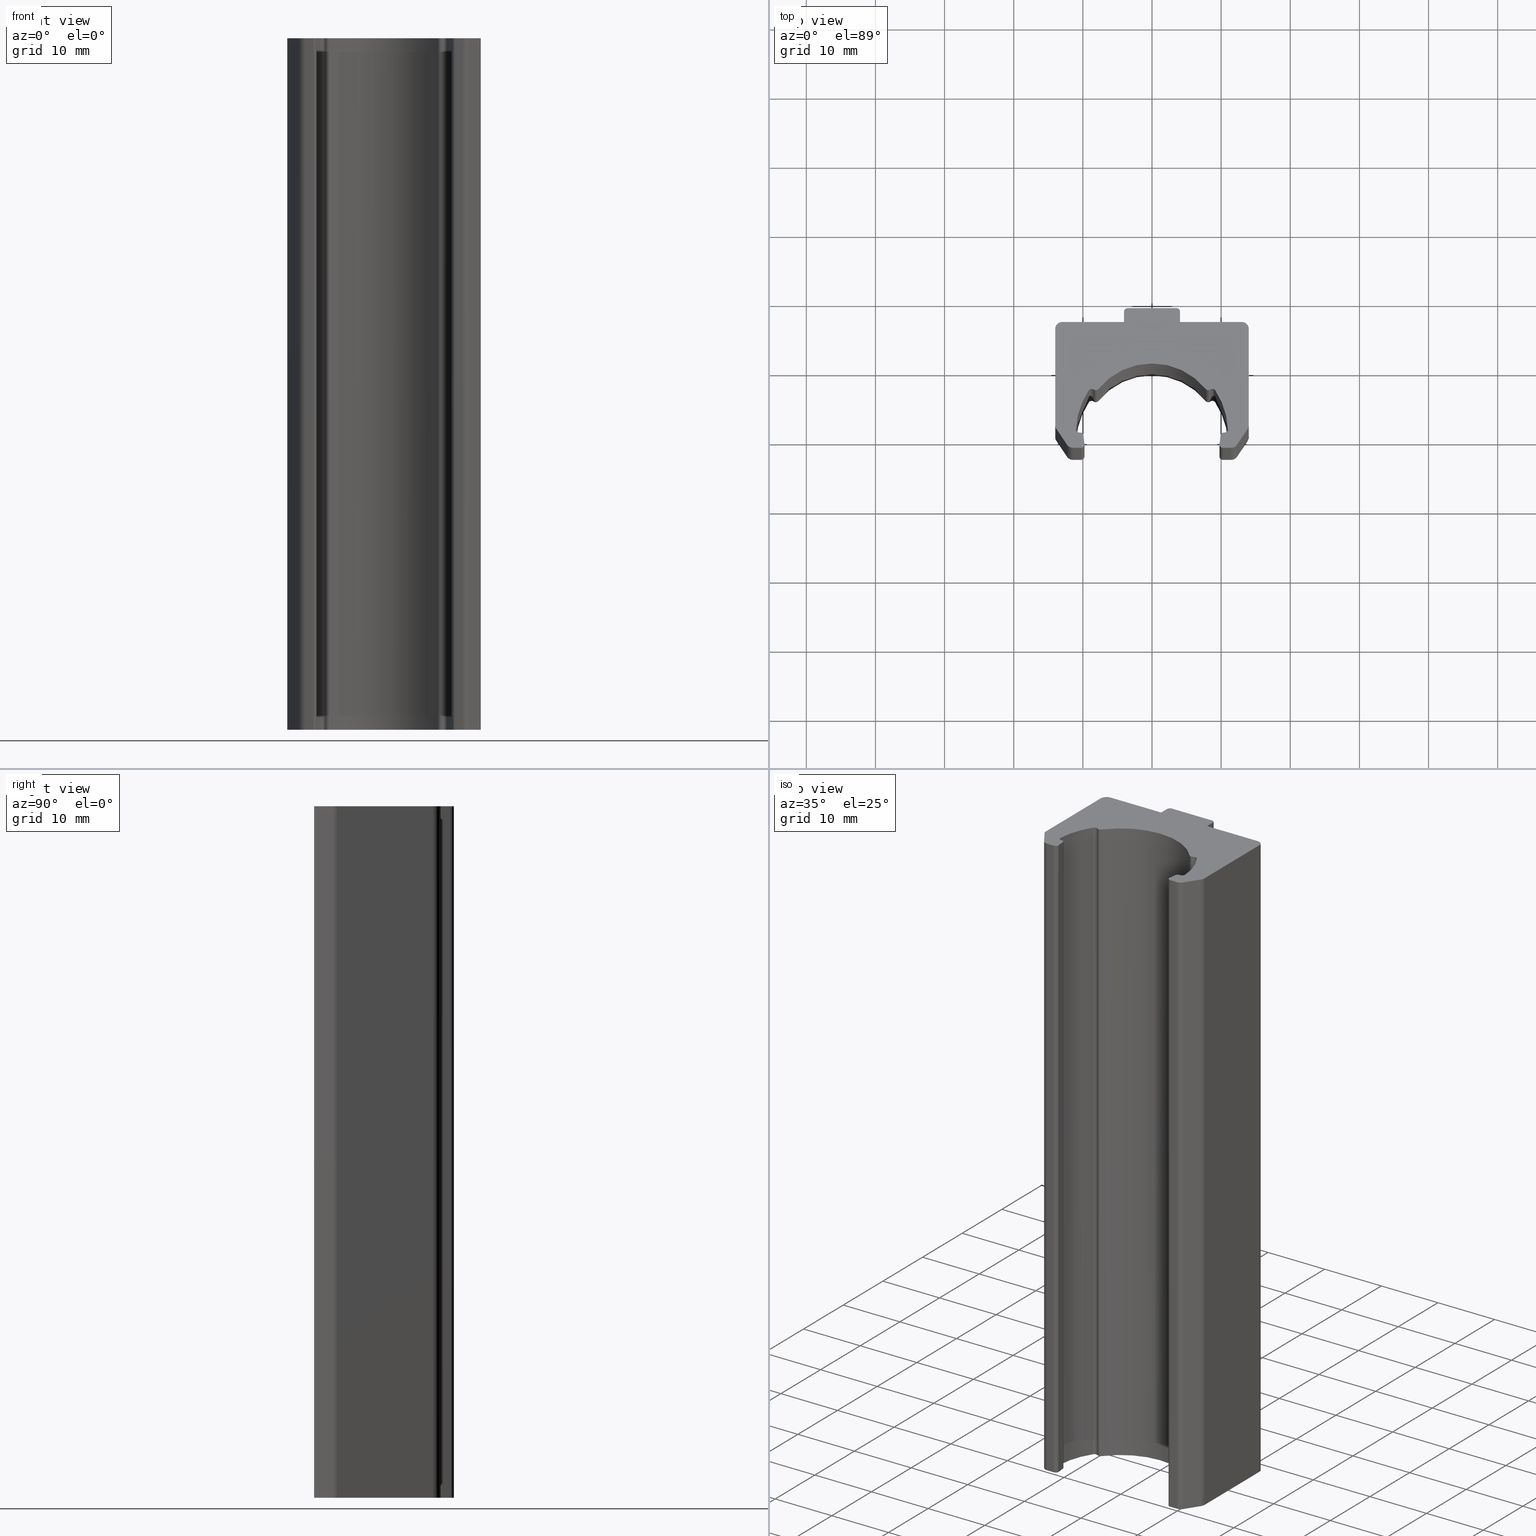
[diagram: canonical four-view strip — front | top / right | iso, engineering-drawing reading convention]
A machine part, canonical four-view strip (front | top / right | iso — engineering-drawing reading convention). The complete STEP part file that produces these views, byte-faithful:
ISO-10303-21;
HEADER;
/* Generated by software containing ST-Developer
 * from STEP Tools, Inc. (www.steptools.com) 
 */

FILE_DESCRIPTION(
/* description */ ('Profilo alluminio 01.'),
/* implementation_level */ '2;1');

FILE_NAME(
/* name */ 
'Q:\\Catalogo\\1_Profili Dierre\\Per Download Web e catalogo cartaceo\\
Profili Monorail\\BPRGD0000021.stp',
/* time_stamp */ '2018-02-27T11:33:29+01:00',
/* author */ ('fzagni'),
/* organization */ (''),
/* preprocessor_version */ 'ST-DEVELOPER v16.1',
/* originating_system */ 'Autodesk Inventor 2016',
/* authorisation */ '');

FILE_SCHEMA (('AUTOMOTIVE_DESIGN { 1 0 10303 214 3 1 1 }'));
ENDSEC;

DATA;
#10=MECHANICAL_DESIGN_GEOMETRIC_PRESENTATION_REPRESENTATION('',(#13),#1277);
#11=SHAPE_REPRESENTATION_RELATIONSHIP('SRR','None',#1286,#12);
#12=ADVANCED_BREP_SHAPE_REPRESENTATION('',(#14),#1276);
#13=STYLED_ITEM('',(#1295),#14);
#14=MANIFOLD_SOLID_BREP('Solido1',#729);
#15=PLANE('',#752);
#16=PLANE('',#756);
#17=PLANE('',#760);
#18=PLANE('',#764);
#19=PLANE('',#768);
#20=PLANE('',#772);
#21=PLANE('',#776);
#22=PLANE('',#780);
#23=PLANE('',#784);
#24=PLANE('',#788);
#25=PLANE('',#792);
#26=PLANE('',#817);
#27=PLANE('',#818);
#28=FACE_OUTER_BOUND('',#66,.T.);
#29=FACE_OUTER_BOUND('',#67,.T.);
#30=FACE_OUTER_BOUND('',#68,.T.);
#31=FACE_OUTER_BOUND('',#69,.T.);
#32=FACE_OUTER_BOUND('',#70,.T.);
#33=FACE_OUTER_BOUND('',#71,.T.);
#34=FACE_OUTER_BOUND('',#72,.T.);
#35=FACE_OUTER_BOUND('',#73,.T.);
#36=FACE_OUTER_BOUND('',#74,.T.);
#37=FACE_OUTER_BOUND('',#75,.T.);
#38=FACE_OUTER_BOUND('',#76,.T.);
#39=FACE_OUTER_BOUND('',#77,.T.);
#40=FACE_OUTER_BOUND('',#78,.T.);
#41=FACE_OUTER_BOUND('',#79,.T.);
#42=FACE_OUTER_BOUND('',#80,.T.);
#43=FACE_OUTER_BOUND('',#81,.T.);
#44=FACE_OUTER_BOUND('',#82,.T.);
#45=FACE_OUTER_BOUND('',#83,.T.);
#46=FACE_OUTER_BOUND('',#84,.T.);
#47=FACE_OUTER_BOUND('',#85,.T.);
#48=FACE_OUTER_BOUND('',#86,.T.);
#49=FACE_OUTER_BOUND('',#87,.T.);
#50=FACE_OUTER_BOUND('',#88,.T.);
#51=FACE_OUTER_BOUND('',#89,.T.);
#52=FACE_OUTER_BOUND('',#90,.T.);
#53=FACE_OUTER_BOUND('',#91,.T.);
#54=FACE_OUTER_BOUND('',#92,.T.);
#55=FACE_OUTER_BOUND('',#93,.T.);
#56=FACE_OUTER_BOUND('',#94,.T.);
#57=FACE_OUTER_BOUND('',#95,.T.);
#58=FACE_OUTER_BOUND('',#96,.T.);
#59=FACE_OUTER_BOUND('',#97,.T.);
#60=FACE_OUTER_BOUND('',#98,.T.);
#61=FACE_OUTER_BOUND('',#99,.T.);
#62=FACE_OUTER_BOUND('',#100,.T.);
#63=FACE_OUTER_BOUND('',#101,.T.);
#64=FACE_OUTER_BOUND('',#102,.T.);
#65=FACE_OUTER_BOUND('',#103,.T.);
#66=EDGE_LOOP('',(#450,#451,#452,#453));
#67=EDGE_LOOP('',(#454,#455,#456,#457));
#68=EDGE_LOOP('',(#458,#459,#460,#461));
#69=EDGE_LOOP('',(#462,#463,#464,#465));
#70=EDGE_LOOP('',(#466,#467,#468,#469));
#71=EDGE_LOOP('',(#470,#471,#472,#473));
#72=EDGE_LOOP('',(#474,#475,#476,#477));
#73=EDGE_LOOP('',(#478,#479,#480,#481));
#74=EDGE_LOOP('',(#482,#483,#484,#485));
#75=EDGE_LOOP('',(#486,#487,#488,#489));
#76=EDGE_LOOP('',(#490,#491,#492,#493));
#77=EDGE_LOOP('',(#494,#495,#496,#497));
#78=EDGE_LOOP('',(#498,#499,#500,#501));
#79=EDGE_LOOP('',(#502,#503,#504,#505));
#80=EDGE_LOOP('',(#506,#507,#508,#509));
#81=EDGE_LOOP('',(#510,#511,#512,#513));
#82=EDGE_LOOP('',(#514,#515,#516,#517));
#83=EDGE_LOOP('',(#518,#519,#520,#521));
#84=EDGE_LOOP('',(#522,#523,#524,#525));
#85=EDGE_LOOP('',(#526,#527,#528,#529));
#86=EDGE_LOOP('',(#530,#531,#532,#533));
#87=EDGE_LOOP('',(#534,#535,#536,#537));
#88=EDGE_LOOP('',(#538,#539,#540,#541));
#89=EDGE_LOOP('',(#542,#543,#544,#545));
#90=EDGE_LOOP('',(#546,#547,#548,#549));
#91=EDGE_LOOP('',(#550,#551,#552,#553));
#92=EDGE_LOOP('',(#554,#555,#556,#557));
#93=EDGE_LOOP('',(#558,#559,#560,#561));
#94=EDGE_LOOP('',(#562,#563,#564,#565));
#95=EDGE_LOOP('',(#566,#567,#568,#569));
#96=EDGE_LOOP('',(#570,#571,#572,#573));
#97=EDGE_LOOP('',(#574,#575,#576,#577));
#98=EDGE_LOOP('',(#578,#579,#580,#581));
#99=EDGE_LOOP('',(#582,#583,#584,#585));
#100=EDGE_LOOP('',(#586,#587,#588,#589));
#101=EDGE_LOOP('',(#590,#591,#592,#593));
#102=EDGE_LOOP('',(#594,#595,#596,#597,#598,#599,#600,#601,#602,#603,#604,
#605,#606,#607,#608,#609,#610,#611,#612,#613,#614,#615,#616,#617,#618,#619,
#620,#621,#622,#623,#624,#625,#626,#627,#628,#629));
#103=EDGE_LOOP('',(#630,#631,#632,#633,#634,#635,#636,#637,#638,#639,#640,
#641,#642,#643,#644,#645,#646,#647,#648,#649,#650,#651,#652,#653,#654,#655,
#656,#657,#658,#659,#660,#661,#662,#663,#664,#665));
#104=LINE('',#1061,#162);
#105=LINE('',#1064,#163);
#106=LINE('',#1070,#164);
#107=LINE('',#1076,#165);
#108=LINE('',#1082,#166);
#109=LINE('',#1088,#167);
#110=LINE('',#1094,#168);
#111=LINE('',#1100,#169);
#112=LINE('',#1103,#170);
#113=LINE('',#1105,#171);
#114=LINE('',#1106,#172);
#115=LINE('',#1112,#173);
#116=LINE('',#1115,#174);
#117=LINE('',#1117,#175);
#118=LINE('',#1118,#176);
#119=LINE('',#1124,#177);
#120=LINE('',#1127,#178);
#121=LINE('',#1129,#179);
#122=LINE('',#1130,#180);
#123=LINE('',#1136,#181);
#124=LINE('',#1139,#182);
#125=LINE('',#1141,#183);
#126=LINE('',#1142,#184);
#127=LINE('',#1148,#185);
#128=LINE('',#1151,#186);
#129=LINE('',#1153,#187);
#130=LINE('',#1154,#188);
#131=LINE('',#1160,#189);
#132=LINE('',#1163,#190);
#133=LINE('',#1165,#191);
#134=LINE('',#1166,#192);
#135=LINE('',#1172,#193);
#136=LINE('',#1175,#194);
#137=LINE('',#1177,#195);
#138=LINE('',#1178,#196);
#139=LINE('',#1184,#197);
#140=LINE('',#1187,#198);
#141=LINE('',#1189,#199);
#142=LINE('',#1190,#200);
#143=LINE('',#1196,#201);
#144=LINE('',#1199,#202);
#145=LINE('',#1201,#203);
#146=LINE('',#1202,#204);
#147=LINE('',#1208,#205);
#148=LINE('',#1211,#206);
#149=LINE('',#1213,#207);
#150=LINE('',#1214,#208);
#151=LINE('',#1220,#209);
#152=LINE('',#1223,#210);
#153=LINE('',#1225,#211);
#154=LINE('',#1226,#212);
#155=LINE('',#1232,#213);
#156=LINE('',#1238,#214);
#157=LINE('',#1244,#215);
#158=LINE('',#1250,#216);
#159=LINE('',#1256,#217);
#160=LINE('',#1262,#218);
#161=LINE('',#1268,#219);
#162=VECTOR('',#825,100.);
#163=VECTOR('',#828,100.);
#164=VECTOR('',#835,100.);
#165=VECTOR('',#842,100.);
#166=VECTOR('',#849,100.);
#167=VECTOR('',#856,100.);
#168=VECTOR('',#863,100.);
#169=VECTOR('',#870,100.);
#170=VECTOR('',#873,1.20469982082017);
#171=VECTOR('',#874,1.20469982082017);
#172=VECTOR('',#875,100.);
#173=VECTOR('',#882,100.);
#174=VECTOR('',#885,2.76759187923272);
#175=VECTOR('',#886,2.76759187923272);
#176=VECTOR('',#887,100.);
#177=VECTOR('',#894,100.);
#178=VECTOR('',#897,13.8972243622125);
#179=VECTOR('',#898,13.8972243622125);
#180=VECTOR('',#899,100.);
#181=VECTOR('',#906,100.);
#182=VECTOR('',#909,8.84999999996477);
#183=VECTOR('',#910,8.84999999996477);
#184=VECTOR('',#911,100.);
#185=VECTOR('',#918,100.);
#186=VECTOR('',#921,1.39999999999418);
#187=VECTOR('',#922,1.39999999999418);
#188=VECTOR('',#923,100.);
#189=VECTOR('',#930,100.);
#190=VECTOR('',#933,7.09999999997126);
#191=VECTOR('',#934,7.09999999997126);
#192=VECTOR('',#935,100.);
#193=VECTOR('',#942,100.);
#194=VECTOR('',#945,1.39999999999418);
#195=VECTOR('',#946,1.39999999999418);
#196=VECTOR('',#947,100.);
#197=VECTOR('',#954,100.);
#198=VECTOR('',#957,8.84999847502764);
#199=VECTOR('',#958,8.84999847502764);
#200=VECTOR('',#959,100.);
#201=VECTOR('',#966,100.);
#202=VECTOR('',#969,13.8972243622123);
#203=VECTOR('',#970,13.8972243622123);
#204=VECTOR('',#971,100.);
#205=VECTOR('',#978,100.);
#206=VECTOR('',#981,2.76759187923311);
#207=VECTOR('',#982,2.76759187923311);
#208=VECTOR('',#983,100.);
#209=VECTOR('',#990,100.);
#210=VECTOR('',#993,1.2047000421435);
#211=VECTOR('',#994,1.2047000421435);
#212=VECTOR('',#995,100.);
#213=VECTOR('',#1002,100.);
#214=VECTOR('',#1009,100.);
#215=VECTOR('',#1016,100.);
#216=VECTOR('',#1023,100.);
#217=VECTOR('',#1030,100.);
#218=VECTOR('',#1037,100.);
#219=VECTOR('',#1044,100.);
#220=CIRCLE('',#732,0.499999999998);
#221=CIRCLE('',#733,0.499999999998);
#222=CIRCLE('',#735,0.499999999998);
#223=CIRCLE('',#736,0.499999999998);
#224=CIRCLE('',#738,10.9999999999542);
#225=CIRCLE('',#739,10.9999999999542);
#226=CIRCLE('',#741,0.499999999998);
#227=CIRCLE('',#742,0.499999999998);
#228=CIRCLE('',#744,0.499999999998);
#229=CIRCLE('',#745,0.499999999998);
#230=CIRCLE('',#747,9.89999856988403);
#231=CIRCLE('',#748,9.89999856988403);
#232=CIRCLE('',#750,0.499999999998);
#233=CIRCLE('',#751,0.499999999998);
#234=CIRCLE('',#754,0.999999999996);
#235=CIRCLE('',#755,0.999999999996);
#236=CIRCLE('',#758,0.999999999996);
#237=CIRCLE('',#759,0.999999999996);
#238=CIRCLE('',#762,0.999999999996);
#239=CIRCLE('',#763,0.999999999996);
#240=CIRCLE('',#766,0.0999999999996);
#241=CIRCLE('',#767,0.0999999999996);
#242=CIRCLE('',#770,0.499999999998);
#243=CIRCLE('',#771,0.499999999998);
#244=CIRCLE('',#774,0.499999999998);
#245=CIRCLE('',#775,0.499999999998);
#246=CIRCLE('',#778,0.0999999999996);
#247=CIRCLE('',#779,0.0999999999996);
#248=CIRCLE('',#782,0.999999999996);
#249=CIRCLE('',#783,0.999999999996);
#250=CIRCLE('',#786,0.999999999996);
#251=CIRCLE('',#787,0.999999999996);
#252=CIRCLE('',#790,0.999999999996);
#253=CIRCLE('',#791,0.999999999996);
#254=CIRCLE('',#794,0.499999999998);
#255=CIRCLE('',#795,0.499999999998);
#256=CIRCLE('',#797,9.89999856988403);
#257=CIRCLE('',#798,9.89999856988403);
#258=CIRCLE('',#800,0.499999999998);
#259=CIRCLE('',#801,0.499999999998);
#260=CIRCLE('',#803,0.499999999998);
#261=CIRCLE('',#804,0.499999999998);
#262=CIRCLE('',#806,10.9999999999547);
#263=CIRCLE('',#807,10.9999999999547);
#264=CIRCLE('',#809,0.499999999998);
#265=CIRCLE('',#810,0.499999999998);
#266=CIRCLE('',#812,0.499999999998);
#267=CIRCLE('',#813,0.499999999998);
#268=CIRCLE('',#815,9.99999999995869);
#269=CIRCLE('',#816,9.99999999995869);
#270=VERTEX_POINT('',#1057);
#271=VERTEX_POINT('',#1058);
#272=VERTEX_POINT('',#1060);
#273=VERTEX_POINT('',#1062);
#274=VERTEX_POINT('',#1066);
#275=VERTEX_POINT('',#1068);
#276=VERTEX_POINT('',#1072);
#277=VERTEX_POINT('',#1074);
#278=VERTEX_POINT('',#1078);
#279=VERTEX_POINT('',#1080);
#280=VERTEX_POINT('',#1084);
#281=VERTEX_POINT('',#1086);
#282=VERTEX_POINT('',#1090);
#283=VERTEX_POINT('',#1092);
#284=VERTEX_POINT('',#1096);
#285=VERTEX_POINT('',#1098);
#286=VERTEX_POINT('',#1102);
#287=VERTEX_POINT('',#1104);
#288=VERTEX_POINT('',#1108);
#289=VERTEX_POINT('',#1110);
#290=VERTEX_POINT('',#1114);
#291=VERTEX_POINT('',#1116);
#292=VERTEX_POINT('',#1120);
#293=VERTEX_POINT('',#1122);
#294=VERTEX_POINT('',#1126);
#295=VERTEX_POINT('',#1128);
#296=VERTEX_POINT('',#1132);
#297=VERTEX_POINT('',#1134);
#298=VERTEX_POINT('',#1138);
#299=VERTEX_POINT('',#1140);
#300=VERTEX_POINT('',#1144);
#301=VERTEX_POINT('',#1146);
#302=VERTEX_POINT('',#1150);
#303=VERTEX_POINT('',#1152);
#304=VERTEX_POINT('',#1156);
#305=VERTEX_POINT('',#1158);
#306=VERTEX_POINT('',#1162);
#307=VERTEX_POINT('',#1164);
#308=VERTEX_POINT('',#1168);
#309=VERTEX_POINT('',#1170);
#310=VERTEX_POINT('',#1174);
#311=VERTEX_POINT('',#1176);
#312=VERTEX_POINT('',#1180);
#313=VERTEX_POINT('',#1182);
#314=VERTEX_POINT('',#1186);
#315=VERTEX_POINT('',#1188);
#316=VERTEX_POINT('',#1192);
#317=VERTEX_POINT('',#1194);
#318=VERTEX_POINT('',#1198);
#319=VERTEX_POINT('',#1200);
#320=VERTEX_POINT('',#1204);
#321=VERTEX_POINT('',#1206);
#322=VERTEX_POINT('',#1210);
#323=VERTEX_POINT('',#1212);
#324=VERTEX_POINT('',#1216);
#325=VERTEX_POINT('',#1218);
#326=VERTEX_POINT('',#1222);
#327=VERTEX_POINT('',#1224);
#328=VERTEX_POINT('',#1228);
#329=VERTEX_POINT('',#1230);
#330=VERTEX_POINT('',#1234);
#331=VERTEX_POINT('',#1236);
#332=VERTEX_POINT('',#1240);
#333=VERTEX_POINT('',#1242);
#334=VERTEX_POINT('',#1246);
#335=VERTEX_POINT('',#1248);
#336=VERTEX_POINT('',#1252);
#337=VERTEX_POINT('',#1254);
#338=VERTEX_POINT('',#1258);
#339=VERTEX_POINT('',#1260);
#340=VERTEX_POINT('',#1264);
#341=VERTEX_POINT('',#1266);
#342=EDGE_CURVE('',#270,#271,#220,.T.);
#343=EDGE_CURVE('',#270,#272,#104,.T.);
#344=EDGE_CURVE('',#273,#272,#221,.T.);
#345=EDGE_CURVE('',#271,#273,#105,.T.);
#346=EDGE_CURVE('',#271,#274,#222,.T.);
#347=EDGE_CURVE('',#275,#273,#223,.T.);
#348=EDGE_CURVE('',#274,#275,#106,.T.);
#349=EDGE_CURVE('',#274,#276,#224,.T.);
#350=EDGE_CURVE('',#277,#275,#225,.T.);
#351=EDGE_CURVE('',#276,#277,#107,.T.);
#352=EDGE_CURVE('',#276,#278,#226,.T.);
#353=EDGE_CURVE('',#279,#277,#227,.T.);
#354=EDGE_CURVE('',#278,#279,#108,.T.);
#355=EDGE_CURVE('',#278,#280,#228,.T.);
#356=EDGE_CURVE('',#281,#279,#229,.T.);
#357=EDGE_CURVE('',#280,#281,#109,.T.);
#358=EDGE_CURVE('',#280,#282,#230,.T.);
#359=EDGE_CURVE('',#283,#281,#231,.T.);
#360=EDGE_CURVE('',#282,#283,#110,.T.);
#361=EDGE_CURVE('',#282,#284,#232,.T.);
#362=EDGE_CURVE('',#285,#283,#233,.T.);
#363=EDGE_CURVE('',#284,#285,#111,.T.);
#364=EDGE_CURVE('',#284,#286,#112,.T.);
#365=EDGE_CURVE('',#287,#285,#113,.T.);
#366=EDGE_CURVE('',#286,#287,#114,.T.);
#367=EDGE_CURVE('',#286,#288,#234,.T.);
#368=EDGE_CURVE('',#289,#287,#235,.T.);
#369=EDGE_CURVE('',#288,#289,#115,.T.);
#370=EDGE_CURVE('',#288,#290,#116,.T.);
#371=EDGE_CURVE('',#291,#289,#117,.T.);
#372=EDGE_CURVE('',#290,#291,#118,.T.);
#373=EDGE_CURVE('',#290,#292,#236,.T.);
#374=EDGE_CURVE('',#293,#291,#237,.T.);
#375=EDGE_CURVE('',#292,#293,#119,.T.);
#376=EDGE_CURVE('',#292,#294,#120,.T.);
#377=EDGE_CURVE('',#295,#293,#121,.T.);
#378=EDGE_CURVE('',#294,#295,#122,.T.);
#379=EDGE_CURVE('',#294,#296,#238,.T.);
#380=EDGE_CURVE('',#297,#295,#239,.T.);
#381=EDGE_CURVE('',#296,#297,#123,.T.);
#382=EDGE_CURVE('',#296,#298,#124,.T.);
#383=EDGE_CURVE('',#299,#297,#125,.T.);
#384=EDGE_CURVE('',#298,#299,#126,.T.);
#385=EDGE_CURVE('',#298,#300,#240,.T.);
#386=EDGE_CURVE('',#301,#299,#241,.T.);
#387=EDGE_CURVE('',#300,#301,#127,.T.);
#388=EDGE_CURVE('',#300,#302,#128,.T.);
#389=EDGE_CURVE('',#303,#301,#129,.T.);
#390=EDGE_CURVE('',#302,#303,#130,.T.);
#391=EDGE_CURVE('',#302,#304,#242,.T.);
#392=EDGE_CURVE('',#305,#303,#243,.T.);
#393=EDGE_CURVE('',#304,#305,#131,.T.);
#394=EDGE_CURVE('',#304,#306,#132,.T.);
#395=EDGE_CURVE('',#307,#305,#133,.T.);
#396=EDGE_CURVE('',#306,#307,#134,.T.);
#397=EDGE_CURVE('',#306,#308,#244,.T.);
#398=EDGE_CURVE('',#309,#307,#245,.T.);
#399=EDGE_CURVE('',#308,#309,#135,.T.);
#400=EDGE_CURVE('',#308,#310,#136,.T.);
#401=EDGE_CURVE('',#311,#309,#137,.T.);
#402=EDGE_CURVE('',#310,#311,#138,.T.);
#403=EDGE_CURVE('',#310,#312,#246,.T.);
#404=EDGE_CURVE('',#313,#311,#247,.T.);
#405=EDGE_CURVE('',#312,#313,#139,.T.);
#406=EDGE_CURVE('',#312,#314,#140,.T.);
#407=EDGE_CURVE('',#315,#313,#141,.T.);
#408=EDGE_CURVE('',#314,#315,#142,.T.);
#409=EDGE_CURVE('',#314,#316,#248,.T.);
#410=EDGE_CURVE('',#317,#315,#249,.T.);
#411=EDGE_CURVE('',#316,#317,#143,.T.);
#412=EDGE_CURVE('',#316,#318,#144,.T.);
#413=EDGE_CURVE('',#319,#317,#145,.T.);
#414=EDGE_CURVE('',#318,#319,#146,.T.);
#415=EDGE_CURVE('',#318,#320,#250,.T.);
#416=EDGE_CURVE('',#321,#319,#251,.T.);
#417=EDGE_CURVE('',#320,#321,#147,.T.);
#418=EDGE_CURVE('',#320,#322,#148,.T.);
#419=EDGE_CURVE('',#323,#321,#149,.T.);
#420=EDGE_CURVE('',#322,#323,#150,.T.);
#421=EDGE_CURVE('',#322,#324,#252,.T.);
#422=EDGE_CURVE('',#325,#323,#253,.T.);
#423=EDGE_CURVE('',#324,#325,#151,.T.);
#424=EDGE_CURVE('',#324,#326,#152,.T.);
#425=EDGE_CURVE('',#327,#325,#153,.T.);
#426=EDGE_CURVE('',#326,#327,#154,.T.);
#427=EDGE_CURVE('',#326,#328,#254,.T.);
#428=EDGE_CURVE('',#329,#327,#255,.T.);
#429=EDGE_CURVE('',#328,#329,#155,.T.);
#430=EDGE_CURVE('',#328,#330,#256,.T.);
#431=EDGE_CURVE('',#331,#329,#257,.T.);
#432=EDGE_CURVE('',#330,#331,#156,.T.);
#433=EDGE_CURVE('',#330,#332,#258,.T.);
#434=EDGE_CURVE('',#333,#331,#259,.T.);
#435=EDGE_CURVE('',#332,#333,#157,.T.);
#436=EDGE_CURVE('',#332,#334,#260,.T.);
#437=EDGE_CURVE('',#335,#333,#261,.T.);
#438=EDGE_CURVE('',#334,#335,#158,.T.);
#439=EDGE_CURVE('',#334,#336,#262,.T.);
#440=EDGE_CURVE('',#337,#335,#263,.T.);
#441=EDGE_CURVE('',#336,#337,#159,.T.);
#442=EDGE_CURVE('',#336,#338,#264,.T.);
#443=EDGE_CURVE('',#339,#337,#265,.T.);
#444=EDGE_CURVE('',#338,#339,#160,.T.);
#445=EDGE_CURVE('',#338,#340,#266,.T.);
#446=EDGE_CURVE('',#341,#339,#267,.T.);
#447=EDGE_CURVE('',#340,#341,#161,.T.);
#448=EDGE_CURVE('',#340,#270,#268,.T.);
#449=EDGE_CURVE('',#272,#341,#269,.T.);
#450=ORIENTED_EDGE('',*,*,#342,.F.);
#451=ORIENTED_EDGE('',*,*,#343,.T.);
#452=ORIENTED_EDGE('',*,*,#344,.F.);
#453=ORIENTED_EDGE('',*,*,#345,.F.);
#454=ORIENTED_EDGE('',*,*,#346,.F.);
#455=ORIENTED_EDGE('',*,*,#345,.T.);
#456=ORIENTED_EDGE('',*,*,#347,.F.);
#457=ORIENTED_EDGE('',*,*,#348,.F.);
#458=ORIENTED_EDGE('',*,*,#349,.F.);
#459=ORIENTED_EDGE('',*,*,#348,.T.);
#460=ORIENTED_EDGE('',*,*,#350,.F.);
#461=ORIENTED_EDGE('',*,*,#351,.F.);
#462=ORIENTED_EDGE('',*,*,#352,.F.);
#463=ORIENTED_EDGE('',*,*,#351,.T.);
#464=ORIENTED_EDGE('',*,*,#353,.F.);
#465=ORIENTED_EDGE('',*,*,#354,.F.);
#466=ORIENTED_EDGE('',*,*,#355,.F.);
#467=ORIENTED_EDGE('',*,*,#354,.T.);
#468=ORIENTED_EDGE('',*,*,#356,.F.);
#469=ORIENTED_EDGE('',*,*,#357,.F.);
#470=ORIENTED_EDGE('',*,*,#358,.F.);
#471=ORIENTED_EDGE('',*,*,#357,.T.);
#472=ORIENTED_EDGE('',*,*,#359,.F.);
#473=ORIENTED_EDGE('',*,*,#360,.F.);
#474=ORIENTED_EDGE('',*,*,#361,.F.);
#475=ORIENTED_EDGE('',*,*,#360,.T.);
#476=ORIENTED_EDGE('',*,*,#362,.F.);
#477=ORIENTED_EDGE('',*,*,#363,.F.);
#478=ORIENTED_EDGE('',*,*,#364,.F.);
#479=ORIENTED_EDGE('',*,*,#363,.T.);
#480=ORIENTED_EDGE('',*,*,#365,.F.);
#481=ORIENTED_EDGE('',*,*,#366,.F.);
#482=ORIENTED_EDGE('',*,*,#367,.F.);
#483=ORIENTED_EDGE('',*,*,#366,.T.);
#484=ORIENTED_EDGE('',*,*,#368,.F.);
#485=ORIENTED_EDGE('',*,*,#369,.F.);
#486=ORIENTED_EDGE('',*,*,#370,.F.);
#487=ORIENTED_EDGE('',*,*,#369,.T.);
#488=ORIENTED_EDGE('',*,*,#371,.F.);
#489=ORIENTED_EDGE('',*,*,#372,.F.);
#490=ORIENTED_EDGE('',*,*,#373,.F.);
#491=ORIENTED_EDGE('',*,*,#372,.T.);
#492=ORIENTED_EDGE('',*,*,#374,.F.);
#493=ORIENTED_EDGE('',*,*,#375,.F.);
#494=ORIENTED_EDGE('',*,*,#376,.F.);
#495=ORIENTED_EDGE('',*,*,#375,.T.);
#496=ORIENTED_EDGE('',*,*,#377,.F.);
#497=ORIENTED_EDGE('',*,*,#378,.F.);
#498=ORIENTED_EDGE('',*,*,#379,.F.);
#499=ORIENTED_EDGE('',*,*,#378,.T.);
#500=ORIENTED_EDGE('',*,*,#380,.F.);
#501=ORIENTED_EDGE('',*,*,#381,.F.);
#502=ORIENTED_EDGE('',*,*,#382,.F.);
#503=ORIENTED_EDGE('',*,*,#381,.T.);
#504=ORIENTED_EDGE('',*,*,#383,.F.);
#505=ORIENTED_EDGE('',*,*,#384,.F.);
#506=ORIENTED_EDGE('',*,*,#385,.F.);
#507=ORIENTED_EDGE('',*,*,#384,.T.);
#508=ORIENTED_EDGE('',*,*,#386,.F.);
#509=ORIENTED_EDGE('',*,*,#387,.F.);
#510=ORIENTED_EDGE('',*,*,#388,.F.);
#511=ORIENTED_EDGE('',*,*,#387,.T.);
#512=ORIENTED_EDGE('',*,*,#389,.F.);
#513=ORIENTED_EDGE('',*,*,#390,.F.);
#514=ORIENTED_EDGE('',*,*,#391,.F.);
#515=ORIENTED_EDGE('',*,*,#390,.T.);
#516=ORIENTED_EDGE('',*,*,#392,.F.);
#517=ORIENTED_EDGE('',*,*,#393,.F.);
#518=ORIENTED_EDGE('',*,*,#394,.F.);
#519=ORIENTED_EDGE('',*,*,#393,.T.);
#520=ORIENTED_EDGE('',*,*,#395,.F.);
#521=ORIENTED_EDGE('',*,*,#396,.F.);
#522=ORIENTED_EDGE('',*,*,#397,.F.);
#523=ORIENTED_EDGE('',*,*,#396,.T.);
#524=ORIENTED_EDGE('',*,*,#398,.F.);
#525=ORIENTED_EDGE('',*,*,#399,.F.);
#526=ORIENTED_EDGE('',*,*,#400,.F.);
#527=ORIENTED_EDGE('',*,*,#399,.T.);
#528=ORIENTED_EDGE('',*,*,#401,.F.);
#529=ORIENTED_EDGE('',*,*,#402,.F.);
#530=ORIENTED_EDGE('',*,*,#403,.F.);
#531=ORIENTED_EDGE('',*,*,#402,.T.);
#532=ORIENTED_EDGE('',*,*,#404,.F.);
#533=ORIENTED_EDGE('',*,*,#405,.F.);
#534=ORIENTED_EDGE('',*,*,#406,.F.);
#535=ORIENTED_EDGE('',*,*,#405,.T.);
#536=ORIENTED_EDGE('',*,*,#407,.F.);
#537=ORIENTED_EDGE('',*,*,#408,.F.);
#538=ORIENTED_EDGE('',*,*,#409,.F.);
#539=ORIENTED_EDGE('',*,*,#408,.T.);
#540=ORIENTED_EDGE('',*,*,#410,.F.);
#541=ORIENTED_EDGE('',*,*,#411,.F.);
#542=ORIENTED_EDGE('',*,*,#412,.F.);
#543=ORIENTED_EDGE('',*,*,#411,.T.);
#544=ORIENTED_EDGE('',*,*,#413,.F.);
#545=ORIENTED_EDGE('',*,*,#414,.F.);
#546=ORIENTED_EDGE('',*,*,#415,.F.);
#547=ORIENTED_EDGE('',*,*,#414,.T.);
#548=ORIENTED_EDGE('',*,*,#416,.F.);
#549=ORIENTED_EDGE('',*,*,#417,.F.);
#550=ORIENTED_EDGE('',*,*,#418,.F.);
#551=ORIENTED_EDGE('',*,*,#417,.T.);
#552=ORIENTED_EDGE('',*,*,#419,.F.);
#553=ORIENTED_EDGE('',*,*,#420,.F.);
#554=ORIENTED_EDGE('',*,*,#421,.F.);
#555=ORIENTED_EDGE('',*,*,#420,.T.);
#556=ORIENTED_EDGE('',*,*,#422,.F.);
#557=ORIENTED_EDGE('',*,*,#423,.F.);
#558=ORIENTED_EDGE('',*,*,#424,.F.);
#559=ORIENTED_EDGE('',*,*,#423,.T.);
#560=ORIENTED_EDGE('',*,*,#425,.F.);
#561=ORIENTED_EDGE('',*,*,#426,.F.);
#562=ORIENTED_EDGE('',*,*,#427,.F.);
#563=ORIENTED_EDGE('',*,*,#426,.T.);
#564=ORIENTED_EDGE('',*,*,#428,.F.);
#565=ORIENTED_EDGE('',*,*,#429,.F.);
#566=ORIENTED_EDGE('',*,*,#430,.F.);
#567=ORIENTED_EDGE('',*,*,#429,.T.);
#568=ORIENTED_EDGE('',*,*,#431,.F.);
#569=ORIENTED_EDGE('',*,*,#432,.F.);
#570=ORIENTED_EDGE('',*,*,#433,.F.);
#571=ORIENTED_EDGE('',*,*,#432,.T.);
#572=ORIENTED_EDGE('',*,*,#434,.F.);
#573=ORIENTED_EDGE('',*,*,#435,.F.);
#574=ORIENTED_EDGE('',*,*,#436,.F.);
#575=ORIENTED_EDGE('',*,*,#435,.T.);
#576=ORIENTED_EDGE('',*,*,#437,.F.);
#577=ORIENTED_EDGE('',*,*,#438,.F.);
#578=ORIENTED_EDGE('',*,*,#439,.F.);
#579=ORIENTED_EDGE('',*,*,#438,.T.);
#580=ORIENTED_EDGE('',*,*,#440,.F.);
#581=ORIENTED_EDGE('',*,*,#441,.F.);
#582=ORIENTED_EDGE('',*,*,#442,.F.);
#583=ORIENTED_EDGE('',*,*,#441,.T.);
#584=ORIENTED_EDGE('',*,*,#443,.F.);
#585=ORIENTED_EDGE('',*,*,#444,.F.);
#586=ORIENTED_EDGE('',*,*,#445,.F.);
#587=ORIENTED_EDGE('',*,*,#444,.T.);
#588=ORIENTED_EDGE('',*,*,#446,.F.);
#589=ORIENTED_EDGE('',*,*,#447,.F.);
#590=ORIENTED_EDGE('',*,*,#448,.F.);
#591=ORIENTED_EDGE('',*,*,#447,.T.);
#592=ORIENTED_EDGE('',*,*,#449,.F.);
#593=ORIENTED_EDGE('',*,*,#343,.F.);
#594=ORIENTED_EDGE('',*,*,#449,.T.);
#595=ORIENTED_EDGE('',*,*,#446,.T.);
#596=ORIENTED_EDGE('',*,*,#443,.T.);
#597=ORIENTED_EDGE('',*,*,#440,.T.);
#598=ORIENTED_EDGE('',*,*,#437,.T.);
#599=ORIENTED_EDGE('',*,*,#434,.T.);
#600=ORIENTED_EDGE('',*,*,#431,.T.);
#601=ORIENTED_EDGE('',*,*,#428,.T.);
#602=ORIENTED_EDGE('',*,*,#425,.T.);
#603=ORIENTED_EDGE('',*,*,#422,.T.);
#604=ORIENTED_EDGE('',*,*,#419,.T.);
#605=ORIENTED_EDGE('',*,*,#416,.T.);
#606=ORIENTED_EDGE('',*,*,#413,.T.);
#607=ORIENTED_EDGE('',*,*,#410,.T.);
#608=ORIENTED_EDGE('',*,*,#407,.T.);
#609=ORIENTED_EDGE('',*,*,#404,.T.);
#610=ORIENTED_EDGE('',*,*,#401,.T.);
#611=ORIENTED_EDGE('',*,*,#398,.T.);
#612=ORIENTED_EDGE('',*,*,#395,.T.);
#613=ORIENTED_EDGE('',*,*,#392,.T.);
#614=ORIENTED_EDGE('',*,*,#389,.T.);
#615=ORIENTED_EDGE('',*,*,#386,.T.);
#616=ORIENTED_EDGE('',*,*,#383,.T.);
#617=ORIENTED_EDGE('',*,*,#380,.T.);
#618=ORIENTED_EDGE('',*,*,#377,.T.);
#619=ORIENTED_EDGE('',*,*,#374,.T.);
#620=ORIENTED_EDGE('',*,*,#371,.T.);
#621=ORIENTED_EDGE('',*,*,#368,.T.);
#622=ORIENTED_EDGE('',*,*,#365,.T.);
#623=ORIENTED_EDGE('',*,*,#362,.T.);
#624=ORIENTED_EDGE('',*,*,#359,.T.);
#625=ORIENTED_EDGE('',*,*,#356,.T.);
#626=ORIENTED_EDGE('',*,*,#353,.T.);
#627=ORIENTED_EDGE('',*,*,#350,.T.);
#628=ORIENTED_EDGE('',*,*,#347,.T.);
#629=ORIENTED_EDGE('',*,*,#344,.T.);
#630=ORIENTED_EDGE('',*,*,#448,.T.);
#631=ORIENTED_EDGE('',*,*,#342,.T.);
#632=ORIENTED_EDGE('',*,*,#346,.T.);
#633=ORIENTED_EDGE('',*,*,#349,.T.);
#634=ORIENTED_EDGE('',*,*,#352,.T.);
#635=ORIENTED_EDGE('',*,*,#355,.T.);
#636=ORIENTED_EDGE('',*,*,#358,.T.);
#637=ORIENTED_EDGE('',*,*,#361,.T.);
#638=ORIENTED_EDGE('',*,*,#364,.T.);
#639=ORIENTED_EDGE('',*,*,#367,.T.);
#640=ORIENTED_EDGE('',*,*,#370,.T.);
#641=ORIENTED_EDGE('',*,*,#373,.T.);
#642=ORIENTED_EDGE('',*,*,#376,.T.);
#643=ORIENTED_EDGE('',*,*,#379,.T.);
#644=ORIENTED_EDGE('',*,*,#382,.T.);
#645=ORIENTED_EDGE('',*,*,#385,.T.);
#646=ORIENTED_EDGE('',*,*,#388,.T.);
#647=ORIENTED_EDGE('',*,*,#391,.T.);
#648=ORIENTED_EDGE('',*,*,#394,.T.);
#649=ORIENTED_EDGE('',*,*,#397,.T.);
#650=ORIENTED_EDGE('',*,*,#400,.T.);
#651=ORIENTED_EDGE('',*,*,#403,.T.);
#652=ORIENTED_EDGE('',*,*,#406,.T.);
#653=ORIENTED_EDGE('',*,*,#409,.T.);
#654=ORIENTED_EDGE('',*,*,#412,.T.);
#655=ORIENTED_EDGE('',*,*,#415,.T.);
#656=ORIENTED_EDGE('',*,*,#418,.T.);
#657=ORIENTED_EDGE('',*,*,#421,.T.);
#658=ORIENTED_EDGE('',*,*,#424,.T.);
#659=ORIENTED_EDGE('',*,*,#427,.T.);
#660=ORIENTED_EDGE('',*,*,#430,.T.);
#661=ORIENTED_EDGE('',*,*,#433,.T.);
#662=ORIENTED_EDGE('',*,*,#436,.T.);
#663=ORIENTED_EDGE('',*,*,#439,.T.);
#664=ORIENTED_EDGE('',*,*,#442,.T.);
#665=ORIENTED_EDGE('',*,*,#445,.T.);
#666=CYLINDRICAL_SURFACE('',#731,0.499999999998);
#667=CYLINDRICAL_SURFACE('',#734,0.499999999998);
#668=CYLINDRICAL_SURFACE('',#737,10.9999999999542);
#669=CYLINDRICAL_SURFACE('',#740,0.499999999998);
#670=CYLINDRICAL_SURFACE('',#743,0.499999999998);
#671=CYLINDRICAL_SURFACE('',#746,9.89999856988403);
#672=CYLINDRICAL_SURFACE('',#749,0.499999999998);
#673=CYLINDRICAL_SURFACE('',#753,0.999999999996);
#674=CYLINDRICAL_SURFACE('',#757,0.999999999996);
#675=CYLINDRICAL_SURFACE('',#761,0.999999999996);
#676=CYLINDRICAL_SURFACE('',#765,0.0999999999996);
#677=CYLINDRICAL_SURFACE('',#769,0.499999999998);
#678=CYLINDRICAL_SURFACE('',#773,0.499999999998);
#679=CYLINDRICAL_SURFACE('',#777,0.0999999999996);
#680=CYLINDRICAL_SURFACE('',#781,0.999999999996);
#681=CYLINDRICAL_SURFACE('',#785,0.999999999996);
#682=CYLINDRICAL_SURFACE('',#789,0.999999999996);
#683=CYLINDRICAL_SURFACE('',#793,0.499999999998);
#684=CYLINDRICAL_SURFACE('',#796,9.89999856988403);
#685=CYLINDRICAL_SURFACE('',#799,0.499999999998);
#686=CYLINDRICAL_SURFACE('',#802,0.499999999998);
#687=CYLINDRICAL_SURFACE('',#805,10.9999999999547);
#688=CYLINDRICAL_SURFACE('',#808,0.499999999998);
#689=CYLINDRICAL_SURFACE('',#811,0.499999999998);
#690=CYLINDRICAL_SURFACE('',#814,9.99999999995869);
#691=ADVANCED_FACE('',(#28),#666,.T.);
#692=ADVANCED_FACE('',(#29),#667,.F.);
#693=ADVANCED_FACE('',(#30),#668,.F.);
#694=ADVANCED_FACE('',(#31),#669,.F.);
#695=ADVANCED_FACE('',(#32),#670,.T.);
#696=ADVANCED_FACE('',(#33),#671,.F.);
#697=ADVANCED_FACE('',(#34),#672,.T.);
#698=ADVANCED_FACE('',(#35),#15,.T.);
#699=ADVANCED_FACE('',(#36),#673,.T.);
#700=ADVANCED_FACE('',(#37),#16,.T.);
#701=ADVANCED_FACE('',(#38),#674,.T.);
#702=ADVANCED_FACE('',(#39),#17,.T.);
#703=ADVANCED_FACE('',(#40),#675,.T.);
#704=ADVANCED_FACE('',(#41),#18,.T.);
#705=ADVANCED_FACE('',(#42),#676,.F.);
#706=ADVANCED_FACE('',(#43),#19,.T.);
#707=ADVANCED_FACE('',(#44),#677,.T.);
#708=ADVANCED_FACE('',(#45),#20,.T.);
#709=ADVANCED_FACE('',(#46),#678,.T.);
#710=ADVANCED_FACE('',(#47),#21,.T.);
#711=ADVANCED_FACE('',(#48),#679,.F.);
#712=ADVANCED_FACE('',(#49),#22,.T.);
#713=ADVANCED_FACE('',(#50),#680,.T.);
#714=ADVANCED_FACE('',(#51),#23,.T.);
#715=ADVANCED_FACE('',(#52),#681,.T.);
#716=ADVANCED_FACE('',(#53),#24,.T.);
#717=ADVANCED_FACE('',(#54),#682,.T.);
#718=ADVANCED_FACE('',(#55),#25,.T.);
#719=ADVANCED_FACE('',(#56),#683,.T.);
#720=ADVANCED_FACE('',(#57),#684,.F.);
#721=ADVANCED_FACE('',(#58),#685,.T.);
#722=ADVANCED_FACE('',(#59),#686,.F.);
#723=ADVANCED_FACE('',(#60),#687,.F.);
#724=ADVANCED_FACE('',(#61),#688,.F.);
#725=ADVANCED_FACE('',(#62),#689,.T.);
#726=ADVANCED_FACE('',(#63),#690,.F.);
#727=ADVANCED_FACE('',(#64),#26,.T.);
#728=ADVANCED_FACE('',(#65),#27,.F.);
#729=CLOSED_SHELL('',(#691,#692,#693,#694,#695,#696,#697,#698,#699,#700,
#701,#702,#703,#704,#705,#706,#707,#708,#709,#710,#711,#712,#713,#714,#715,
#716,#717,#718,#719,#720,#721,#722,#723,#724,#725,#726,#727,#728));
#730=AXIS2_PLACEMENT_3D('placement',#1055,#819,#820);
#731=AXIS2_PLACEMENT_3D('',#1056,#821,#822);
#732=AXIS2_PLACEMENT_3D('',#1059,#823,#824);
#733=AXIS2_PLACEMENT_3D('',#1063,#826,#827);
#734=AXIS2_PLACEMENT_3D('',#1065,#829,#830);
#735=AXIS2_PLACEMENT_3D('',#1067,#831,#832);
#736=AXIS2_PLACEMENT_3D('',#1069,#833,#834);
#737=AXIS2_PLACEMENT_3D('',#1071,#836,#837);
#738=AXIS2_PLACEMENT_3D('',#1073,#838,#839);
#739=AXIS2_PLACEMENT_3D('',#1075,#840,#841);
#740=AXIS2_PLACEMENT_3D('',#1077,#843,#844);
#741=AXIS2_PLACEMENT_3D('',#1079,#845,#846);
#742=AXIS2_PLACEMENT_3D('',#1081,#847,#848);
#743=AXIS2_PLACEMENT_3D('',#1083,#850,#851);
#744=AXIS2_PLACEMENT_3D('',#1085,#852,#853);
#745=AXIS2_PLACEMENT_3D('',#1087,#854,#855);
#746=AXIS2_PLACEMENT_3D('',#1089,#857,#858);
#747=AXIS2_PLACEMENT_3D('',#1091,#859,#860);
#748=AXIS2_PLACEMENT_3D('',#1093,#861,#862);
#749=AXIS2_PLACEMENT_3D('',#1095,#864,#865);
#750=AXIS2_PLACEMENT_3D('',#1097,#866,#867);
#751=AXIS2_PLACEMENT_3D('',#1099,#868,#869);
#752=AXIS2_PLACEMENT_3D('',#1101,#871,#872);
#753=AXIS2_PLACEMENT_3D('',#1107,#876,#877);
#754=AXIS2_PLACEMENT_3D('',#1109,#878,#879);
#755=AXIS2_PLACEMENT_3D('',#1111,#880,#881);
#756=AXIS2_PLACEMENT_3D('',#1113,#883,#884);
#757=AXIS2_PLACEMENT_3D('',#1119,#888,#889);
#758=AXIS2_PLACEMENT_3D('',#1121,#890,#891);
#759=AXIS2_PLACEMENT_3D('',#1123,#892,#893);
#760=AXIS2_PLACEMENT_3D('',#1125,#895,#896);
#761=AXIS2_PLACEMENT_3D('',#1131,#900,#901);
#762=AXIS2_PLACEMENT_3D('',#1133,#902,#903);
#763=AXIS2_PLACEMENT_3D('',#1135,#904,#905);
#764=AXIS2_PLACEMENT_3D('',#1137,#907,#908);
#765=AXIS2_PLACEMENT_3D('',#1143,#912,#913);
#766=AXIS2_PLACEMENT_3D('',#1145,#914,#915);
#767=AXIS2_PLACEMENT_3D('',#1147,#916,#917);
#768=AXIS2_PLACEMENT_3D('',#1149,#919,#920);
#769=AXIS2_PLACEMENT_3D('',#1155,#924,#925);
#770=AXIS2_PLACEMENT_3D('',#1157,#926,#927);
#771=AXIS2_PLACEMENT_3D('',#1159,#928,#929);
#772=AXIS2_PLACEMENT_3D('',#1161,#931,#932);
#773=AXIS2_PLACEMENT_3D('',#1167,#936,#937);
#774=AXIS2_PLACEMENT_3D('',#1169,#938,#939);
#775=AXIS2_PLACEMENT_3D('',#1171,#940,#941);
#776=AXIS2_PLACEMENT_3D('',#1173,#943,#944);
#777=AXIS2_PLACEMENT_3D('',#1179,#948,#949);
#778=AXIS2_PLACEMENT_3D('',#1181,#950,#951);
#779=AXIS2_PLACEMENT_3D('',#1183,#952,#953);
#780=AXIS2_PLACEMENT_3D('',#1185,#955,#956);
#781=AXIS2_PLACEMENT_3D('',#1191,#960,#961);
#782=AXIS2_PLACEMENT_3D('',#1193,#962,#963);
#783=AXIS2_PLACEMENT_3D('',#1195,#964,#965);
#784=AXIS2_PLACEMENT_3D('',#1197,#967,#968);
#785=AXIS2_PLACEMENT_3D('',#1203,#972,#973);
#786=AXIS2_PLACEMENT_3D('',#1205,#974,#975);
#787=AXIS2_PLACEMENT_3D('',#1207,#976,#977);
#788=AXIS2_PLACEMENT_3D('',#1209,#979,#980);
#789=AXIS2_PLACEMENT_3D('',#1215,#984,#985);
#790=AXIS2_PLACEMENT_3D('',#1217,#986,#987);
#791=AXIS2_PLACEMENT_3D('',#1219,#988,#989);
#792=AXIS2_PLACEMENT_3D('',#1221,#991,#992);
#793=AXIS2_PLACEMENT_3D('',#1227,#996,#997);
#794=AXIS2_PLACEMENT_3D('',#1229,#998,#999);
#795=AXIS2_PLACEMENT_3D('',#1231,#1000,#1001);
#796=AXIS2_PLACEMENT_3D('',#1233,#1003,#1004);
#797=AXIS2_PLACEMENT_3D('',#1235,#1005,#1006);
#798=AXIS2_PLACEMENT_3D('',#1237,#1007,#1008);
#799=AXIS2_PLACEMENT_3D('',#1239,#1010,#1011);
#800=AXIS2_PLACEMENT_3D('',#1241,#1012,#1013);
#801=AXIS2_PLACEMENT_3D('',#1243,#1014,#1015);
#802=AXIS2_PLACEMENT_3D('',#1245,#1017,#1018);
#803=AXIS2_PLACEMENT_3D('',#1247,#1019,#1020);
#804=AXIS2_PLACEMENT_3D('',#1249,#1021,#1022);
#805=AXIS2_PLACEMENT_3D('',#1251,#1024,#1025);
#806=AXIS2_PLACEMENT_3D('',#1253,#1026,#1027);
#807=AXIS2_PLACEMENT_3D('',#1255,#1028,#1029);
#808=AXIS2_PLACEMENT_3D('',#1257,#1031,#1032);
#809=AXIS2_PLACEMENT_3D('',#1259,#1033,#1034);
#810=AXIS2_PLACEMENT_3D('',#1261,#1035,#1036);
#811=AXIS2_PLACEMENT_3D('',#1263,#1038,#1039);
#812=AXIS2_PLACEMENT_3D('',#1265,#1040,#1041);
#813=AXIS2_PLACEMENT_3D('',#1267,#1042,#1043);
#814=AXIS2_PLACEMENT_3D('',#1269,#1045,#1046);
#815=AXIS2_PLACEMENT_3D('',#1270,#1047,#1048);
#816=AXIS2_PLACEMENT_3D('',#1271,#1049,#1050);
#817=AXIS2_PLACEMENT_3D('',#1272,#1051,#1052);
#818=AXIS2_PLACEMENT_3D('',#1273,#1053,#1054);
#819=DIRECTION('axis',(0.,0.,1.));
#820=DIRECTION('refdir',(1.,0.,0.));
#821=DIRECTION('center_axis',(0.,0.,1.));
#822=DIRECTION('ref_axis',(0.593974654828973,0.804483753360378,0.));
#823=DIRECTION('center_axis',(0.,0.,-1.));
#824=DIRECTION('ref_axis',(0.593974654828973,0.804483753360378,0.));
#825=DIRECTION('',(0.,0.,1.));
#826=DIRECTION('center_axis',(0.,0.,1.));
#827=DIRECTION('ref_axis',(0.593974654828973,0.804483753360378,0.));
#828=DIRECTION('',(0.,0.,1.));
#829=DIRECTION('center_axis',(0.,0.,1.));
#830=DIRECTION('ref_axis',(0.593974654825558,0.8044837533629,0.));
#831=DIRECTION('center_axis',(0.,0.,1.));
#832=DIRECTION('ref_axis',(0.593974654825558,0.8044837533629,0.));
#833=DIRECTION('center_axis',(0.,0.,-1.));
#834=DIRECTION('ref_axis',(0.593974654825558,0.8044837533629,0.));
#835=DIRECTION('',(0.,0.,1.));
#836=DIRECTION('center_axis',(0.,0.,1.));
#837=DIRECTION('ref_axis',(-0.831855629978779,0.55499208181073,0.));
#838=DIRECTION('center_axis',(0.,0.,1.));
#839=DIRECTION('ref_axis',(-0.831855629978779,0.55499208181073,0.));
#840=DIRECTION('center_axis',(0.,0.,-1.));
#841=DIRECTION('ref_axis',(-0.831855629978779,0.55499208181073,0.));
#842=DIRECTION('',(0.,0.,1.));
#843=DIRECTION('center_axis',(0.,0.,1.));
#844=DIRECTION('ref_axis',(-0.998865470800478,0.0476211218110044,0.));
#845=DIRECTION('center_axis',(0.,0.,1.));
#846=DIRECTION('ref_axis',(-0.998865470800478,0.0476211218110044,0.));
#847=DIRECTION('center_axis',(0.,0.,-1.));
#848=DIRECTION('ref_axis',(-0.998865470800478,0.0476211218110044,0.));
#849=DIRECTION('',(0.,0.,1.));
#850=DIRECTION('center_axis',(0.,0.,1.));
#851=DIRECTION('ref_axis',(-0.998866760141927,-0.0475940698361619,0.));
#852=DIRECTION('center_axis',(0.,0.,-1.));
#853=DIRECTION('ref_axis',(-0.998866760141927,-0.0475940698361619,0.));
#854=DIRECTION('center_axis',(0.,0.,1.));
#855=DIRECTION('ref_axis',(-0.998866760141927,-0.0475940698361619,0.));
#856=DIRECTION('',(0.,0.,1.));
#857=DIRECTION('center_axis',(0.,0.,1.));
#858=DIRECTION('ref_axis',(-0.998866760141927,-0.0475940698361619,0.));
#859=DIRECTION('center_axis',(0.,0.,1.));
#860=DIRECTION('ref_axis',(-0.998866760141927,-0.0475940698361619,0.));
#861=DIRECTION('center_axis',(0.,0.,-1.));
#862=DIRECTION('ref_axis',(-0.998866760141927,-0.0475940698361619,0.));
#863=DIRECTION('',(0.,0.,1.));
#864=DIRECTION('center_axis',(0.,0.,1.));
#865=DIRECTION('ref_axis',(1.77635683940736E-13,1.,0.));
#866=DIRECTION('center_axis',(0.,0.,-1.));
#867=DIRECTION('ref_axis',(1.77635683940736E-13,1.,0.));
#868=DIRECTION('center_axis',(0.,0.,1.));
#869=DIRECTION('ref_axis',(1.77635683940736E-13,1.,0.));
#870=DIRECTION('',(0.,0.,1.));
#871=DIRECTION('center_axis',(-1.76712290723957E-13,-1.,0.));
#872=DIRECTION('ref_axis',(1.,-1.7670309659934E-13,0.));
#873=DIRECTION('',(-1.,1.76712290723957E-13,0.));
#874=DIRECTION('',(1.,-1.76712290723957E-13,0.));
#875=DIRECTION('',(0.,0.,1.));
#876=DIRECTION('center_axis',(0.,0.,1.));
#877=DIRECTION('ref_axis',(0.832050294337945,0.554700196225077,0.));
#878=DIRECTION('center_axis',(0.,0.,-1.));
#879=DIRECTION('ref_axis',(0.832050294337945,0.554700196225077,0.));
#880=DIRECTION('center_axis',(0.,0.,1.));
#881=DIRECTION('ref_axis',(0.832050294337945,0.554700196225077,0.));
#882=DIRECTION('',(0.,0.,1.));
#883=DIRECTION('center_axis',(-0.832050294337877,-0.554700196225179,0.));
#884=DIRECTION('ref_axis',(0.554700196225179,-0.832050294337877,0.));
#885=DIRECTION('',(-0.554700196225179,0.832050294337877,0.));
#886=DIRECTION('',(0.554700196225179,-0.832050294337877,0.));
#887=DIRECTION('',(0.,0.,1.));
#888=DIRECTION('center_axis',(0.,0.,1.));
#889=DIRECTION('ref_axis',(1.,-1.76386683038027E-13,0.));
#890=DIRECTION('center_axis',(0.,0.,-1.));
#891=DIRECTION('ref_axis',(1.,-1.76386683038027E-13,0.));
#892=DIRECTION('center_axis',(0.,0.,1.));
#893=DIRECTION('ref_axis',(1.,-1.76386683038027E-13,0.));
#894=DIRECTION('',(0.,0.,1.));
#895=DIRECTION('center_axis',(-1.,1.76392952612739E-13,0.));
#896=DIRECTION('ref_axis',(-1.76392234152445E-13,-1.,0.));
#897=DIRECTION('',(1.76392952612739E-13,1.,0.));
#898=DIRECTION('',(-1.76392952612739E-13,-1.,0.));
#899=DIRECTION('',(0.,0.,1.));
#900=DIRECTION('center_axis',(0.,0.,1.));
#901=DIRECTION('ref_axis',(-1.75415237891476E-13,-1.,0.));
#902=DIRECTION('center_axis',(0.,0.,-1.));
#903=DIRECTION('ref_axis',(-1.75415237891476E-13,-1.,0.));
#904=DIRECTION('center_axis',(0.,0.,1.));
#905=DIRECTION('ref_axis',(-1.75415237891476E-13,-1.,0.));
#906=DIRECTION('',(0.,0.,1.));
#907=DIRECTION('center_axis',(1.76632092506039E-13,1.,0.));
#908=DIRECTION('ref_axis',(-1.,1.76569869836385E-13,0.));
#909=DIRECTION('',(1.,-1.76632092506039E-13,0.));
#910=DIRECTION('',(-1.,1.76632092506039E-13,0.));
#911=DIRECTION('',(0.,0.,1.));
#912=DIRECTION('center_axis',(0.,0.,1.));
#913=DIRECTION('ref_axis',(-1.77635683940731E-13,-1.,0.));
#914=DIRECTION('center_axis',(0.,0.,1.));
#915=DIRECTION('ref_axis',(-1.77635683940731E-13,-1.,0.));
#916=DIRECTION('center_axis',(0.,0.,-1.));
#917=DIRECTION('ref_axis',(-1.77635683940731E-13,-1.,0.));
#918=DIRECTION('',(0.,0.,1.));
#919=DIRECTION('center_axis',(-1.,1.76049651048435E-13,0.));
#920=DIRECTION('ref_axis',(-1.76036962784565E-13,-1.,0.));
#921=DIRECTION('',(1.76049651048435E-13,1.,0.));
#922=DIRECTION('',(-1.76049651048435E-13,-1.,0.));
#923=DIRECTION('',(0.,0.,1.));
#924=DIRECTION('center_axis',(0.,0.,1.));
#925=DIRECTION('ref_axis',(-5.66213742561095E-14,-1.,0.));
#926=DIRECTION('center_axis',(0.,0.,-1.));
#927=DIRECTION('ref_axis',(-5.66213742561095E-14,-1.,0.));
#928=DIRECTION('center_axis',(0.,0.,1.));
#929=DIRECTION('ref_axis',(-5.66213742561095E-14,-1.,0.));
#930=DIRECTION('',(0.,0.,1.));
#931=DIRECTION('center_axis',(1.76071989539857E-13,1.,0.));
#932=DIRECTION('ref_axis',(-1.,1.76214598468505E-13,0.));
#933=DIRECTION('',(1.,-1.76071989539857E-13,0.));
#934=DIRECTION('',(-1.,1.76071989539857E-13,0.));
#935=DIRECTION('',(0.,0.,1.));
#936=DIRECTION('center_axis',(0.,0.,1.));
#937=DIRECTION('ref_axis',(-1.,3.55271367881471E-13,0.));
#938=DIRECTION('center_axis',(0.,0.,-1.));
#939=DIRECTION('ref_axis',(-1.,3.55271367881471E-13,0.));
#940=DIRECTION('center_axis',(0.,0.,1.));
#941=DIRECTION('ref_axis',(-1.,3.55271367881471E-13,0.));
#942=DIRECTION('',(0.,0.,1.));
#943=DIRECTION('center_axis',(1.,-1.76446159271517E-13,0.));
#944=DIRECTION('ref_axis',(1.76481051994415E-13,1.,0.));
#945=DIRECTION('',(-1.76446159271517E-13,-1.,0.));
#946=DIRECTION('',(1.76446159271517E-13,1.,0.));
#947=DIRECTION('',(0.,0.,1.));
#948=DIRECTION('center_axis',(0.,0.,1.));
#949=DIRECTION('ref_axis',(-1.,2.2204460492592E-14,0.));
#950=DIRECTION('center_axis',(0.,0.,1.));
#951=DIRECTION('ref_axis',(-1.,2.2204460492592E-14,0.));
#952=DIRECTION('center_axis',(0.,0.,-1.));
#953=DIRECTION('ref_axis',(-1.,2.2204460492592E-14,0.));
#954=DIRECTION('',(0.,0.,1.));
#955=DIRECTION('center_axis',(2.88532587191196E-14,1.,0.));
#956=DIRECTION('ref_axis',(-1.,2.87769807982841E-14,0.));
#957=DIRECTION('',(1.,-2.88532587191196E-14,0.));
#958=DIRECTION('',(-1.,2.88532587191196E-14,0.));
#959=DIRECTION('',(0.,0.,1.));
#960=DIRECTION('center_axis',(0.,0.,1.));
#961=DIRECTION('ref_axis',(-1.,1.75415237891476E-13,0.));
#962=DIRECTION('center_axis',(0.,0.,-1.));
#963=DIRECTION('ref_axis',(-1.,1.75415237891476E-13,0.));
#964=DIRECTION('center_axis',(0.,0.,1.));
#965=DIRECTION('ref_axis',(-1.,1.75415237891476E-13,0.));
#966=DIRECTION('',(0.,0.,1.));
#967=DIRECTION('center_axis',(1.,-1.76552728837934E-13,0.));
#968=DIRECTION('ref_axis',(1.76569869836385E-13,1.,0.));
#969=DIRECTION('',(-1.76552728837934E-13,-1.,0.));
#970=DIRECTION('',(1.76552728837934E-13,1.,0.));
#971=DIRECTION('',(0.,0.,1.));
#972=DIRECTION('center_axis',(0.,0.,1.));
#973=DIRECTION('ref_axis',(-0.832050294337746,0.554700196225375,0.));
#974=DIRECTION('center_axis',(0.,0.,-1.));
#975=DIRECTION('ref_axis',(-0.832050294337746,0.554700196225375,0.));
#976=DIRECTION('center_axis',(0.,0.,1.));
#977=DIRECTION('ref_axis',(-0.832050294337746,0.554700196225375,0.));
#978=DIRECTION('',(0.,0.,1.));
#979=DIRECTION('center_axis',(0.832050294337746,-0.554700196225375,0.));
#980=DIRECTION('ref_axis',(0.554700196225375,0.832050294337746,0.));
#981=DIRECTION('',(-0.554700196225375,-0.832050294337746,0.));
#982=DIRECTION('',(0.554700196225375,0.832050294337746,0.));
#983=DIRECTION('',(0.,0.,1.));
#984=DIRECTION('center_axis',(0.,0.,1.));
#985=DIRECTION('ref_axis',(1.77635683940736E-13,1.,0.));
#986=DIRECTION('center_axis',(0.,0.,-1.));
#987=DIRECTION('ref_axis',(1.77635683940736E-13,1.,0.));
#988=DIRECTION('center_axis',(0.,0.,1.));
#989=DIRECTION('ref_axis',(1.77635683940736E-13,1.,0.));
#990=DIRECTION('',(0.,0.,1.));
#991=DIRECTION('center_axis',(-1.77173046416116E-13,-1.,0.));
#992=DIRECTION('ref_axis',(1.,-1.77191594730175E-13,0.));
#993=DIRECTION('',(-1.,1.77173046416116E-13,0.));
#994=DIRECTION('',(1.,-1.77173046416116E-13,0.));
#995=DIRECTION('',(0.,0.,1.));
#996=DIRECTION('center_axis',(0.,0.,1.));
#997=DIRECTION('ref_axis',(0.986549707538145,-0.163461538462113,0.));
#998=DIRECTION('center_axis',(0.,0.,-1.));
#999=DIRECTION('ref_axis',(0.986549707538145,-0.163461538462113,0.));
#1000=DIRECTION('center_axis',(0.,0.,1.));
#1001=DIRECTION('ref_axis',(0.986549707538145,-0.163461538462113,0.));
#1002=DIRECTION('',(0.,0.,1.));
#1003=DIRECTION('center_axis',(0.,0.,1.));
#1004=DIRECTION('ref_axis',(0.98654970753814,-0.163461538462143,0.));
#1005=DIRECTION('center_axis',(0.,0.,1.));
#1006=DIRECTION('ref_axis',(0.98654970753814,-0.163461538462143,0.));
#1007=DIRECTION('center_axis',(0.,0.,-1.));
#1008=DIRECTION('ref_axis',(0.98654970753814,-0.163461538462143,0.));
#1009=DIRECTION('',(0.,0.,1.));
#1010=DIRECTION('center_axis',(0.,0.,1.));
#1011=DIRECTION('ref_axis',(-0.0998766330512567,-0.994999828226289,0.));
#1012=DIRECTION('center_axis',(0.,0.,-1.));
#1013=DIRECTION('ref_axis',(-0.0998766330512567,-0.994999828226289,0.));
#1014=DIRECTION('center_axis',(0.,0.,1.));
#1015=DIRECTION('ref_axis',(-0.0998766330512567,-0.994999828226289,0.));
#1016=DIRECTION('',(0.,0.,1.));
#1017=DIRECTION('center_axis',(0.,0.,1.));
#1018=DIRECTION('ref_axis',(-0.0998766330550022,-0.994999828225913,0.));
#1019=DIRECTION('center_axis',(0.,0.,1.));
#1020=DIRECTION('ref_axis',(-0.0998766330550022,-0.994999828225913,0.));
#1021=DIRECTION('center_axis',(0.,0.,-1.));
#1022=DIRECTION('ref_axis',(-0.0998766330550022,-0.994999828225913,0.));
#1023=DIRECTION('',(0.,0.,1.));
#1024=DIRECTION('center_axis',(0.,0.,1.));
#1025=DIRECTION('ref_axis',(0.998865569713504,0.0476190470391493,0.));
#1026=DIRECTION('center_axis',(0.,0.,1.));
#1027=DIRECTION('ref_axis',(0.998865569713504,0.0476190470391493,0.));
#1028=DIRECTION('center_axis',(0.,0.,-1.));
#1029=DIRECTION('ref_axis',(0.998865569713504,0.0476190470391493,0.));
#1030=DIRECTION('',(0.,0.,1.));
#1031=DIRECTION('center_axis',(0.,0.,1.));
#1032=DIRECTION('ref_axis',(0.831857136393482,0.554989823898813,0.));
#1033=DIRECTION('center_axis',(0.,0.,1.));
#1034=DIRECTION('ref_axis',(0.831857136393482,0.554989823898813,0.));
#1035=DIRECTION('center_axis',(0.,0.,-1.));
#1036=DIRECTION('ref_axis',(0.831857136393482,0.554989823898813,0.));
#1037=DIRECTION('',(0.,0.,1.));
#1038=DIRECTION('center_axis',(0.,0.,1.));
#1039=DIRECTION('ref_axis',(0.775288329611104,0.631607477765126,0.));
#1040=DIRECTION('center_axis',(0.,0.,-1.));
#1041=DIRECTION('ref_axis',(0.775288329611104,0.631607477765126,0.));
#1042=DIRECTION('center_axis',(0.,0.,1.));
#1043=DIRECTION('ref_axis',(0.775288329611104,0.631607477765126,0.));
#1044=DIRECTION('',(0.,0.,1.));
#1045=DIRECTION('center_axis',(0.,0.,1.));
#1046=DIRECTION('ref_axis',(0.775288329611361,0.631607477764811,0.));
#1047=DIRECTION('center_axis',(0.,0.,1.));
#1048=DIRECTION('ref_axis',(0.775288329611361,0.631607477764811,0.));
#1049=DIRECTION('center_axis',(0.,0.,-1.));
#1050=DIRECTION('ref_axis',(0.775288329611361,0.631607477764811,0.));
#1051=DIRECTION('center_axis',(0.,0.,1.));
#1052=DIRECTION('ref_axis',(1.,0.,0.));
#1053=DIRECTION('center_axis',(0.,0.,1.));
#1054=DIRECTION('ref_axis',(1.,0.,0.));
#1055=CARTESIAN_POINT('',(0.,0.,0.));
#1056=CARTESIAN_POINT('Origin',(-8.14050945991397,6.63190061235179,0.));
#1057=CARTESIAN_POINT('',(-7.7528661522989,6.31609582128735,0.));
#1058=CARTESIAN_POINT('',(-8.43749678732721,6.2296587356733,0.));
#1059=CARTESIAN_POINT('Origin',(-8.14050945991397,6.63190061235179,0.));
#1060=CARTESIAN_POINT('',(-7.75286615229891,6.31609582128735,100.));
#1061=CARTESIAN_POINT('',(-7.7528661522989,6.31609582128735,0.));
#1062=CARTESIAN_POINT('',(-8.43749678732721,6.2296587356733,100.));
#1063=CARTESIAN_POINT('Origin',(-8.14050945991397,6.63190061235179,100.));
#1064=CARTESIAN_POINT('',(-8.43749678732721,6.2296587356733,0.));
#1065=CARTESIAN_POINT('Origin',(-8.7344841147388,5.82741685899346,0.));
#1066=CARTESIAN_POINT('',(-9.1504119297254,6.10491289989242,0.));
#1067=CARTESIAN_POINT('Origin',(-8.7344841147388,5.82741685899346,0.));
#1068=CARTESIAN_POINT('',(-9.1504119297254,6.10491289989242,100.));
#1069=CARTESIAN_POINT('Origin',(-8.7344841147388,5.82741685899346,100.));
#1070=CARTESIAN_POINT('',(-9.1504119297254,6.10491289989242,0.));
#1071=CARTESIAN_POINT('Origin',(3.03868041839905E-12,-1.60427227058335E-13,
0.));
#1072=CARTESIAN_POINT('',(-10.9875201788319,0.523832338335892,0.));
#1073=CARTESIAN_POINT('Origin',(3.03868041839905E-12,-1.60427227058335E-13,
0.));
#1074=CARTESIAN_POINT('',(-10.9875201788319,0.523832338335892,100.));
#1075=CARTESIAN_POINT('Origin',(3.03868041839905E-12,-1.60427227058335E-13,
100.));
#1076=CARTESIAN_POINT('',(-10.9875201788319,0.523832338335892,0.));
#1077=CARTESIAN_POINT('Origin',(-10.4880874434379,0.50002177743069,0.));
#1078=CARTESIAN_POINT('',(-10.4381501602104,0.00252175959967977,0.));
#1079=CARTESIAN_POINT('Origin',(-10.4880874434379,0.50002177743069,0.));
#1080=CARTESIAN_POINT('',(-10.4381501602104,0.0025217595996796,100.));
#1081=CARTESIAN_POINT('Origin',(-10.4880874434379,0.50002177743069,100.));
#1082=CARTESIAN_POINT('',(-10.4381501602104,0.00252175959967977,0.));
#1083=CARTESIAN_POINT('Origin',(-10.3882128769795,-0.494978258230983,0.));
#1084=CARTESIAN_POINT('',(-9.88877949691049,-0.471181223312997,0.));
#1085=CARTESIAN_POINT('Origin',(-10.3882128769795,-0.494978258230983,0.));
#1086=CARTESIAN_POINT('',(-9.88877949691049,-0.471181223312998,100.));
#1087=CARTESIAN_POINT('Origin',(-10.3882128769795,-0.494978258230983,100.));
#1088=CARTESIAN_POINT('',(-9.88877949691049,-0.471181223312997,0.));
#1089=CARTESIAN_POINT('Origin',(0.,0.,0.));
#1090=CARTESIAN_POINT('',(-9.76684069374842,-1.61826899700263,0.));
#1091=CARTESIAN_POINT('Origin',(0.,0.,0.));
#1092=CARTESIAN_POINT('',(-9.76684069374842,-1.61826899700263,100.));
#1093=CARTESIAN_POINT('Origin',(0.,0.,100.));
#1094=CARTESIAN_POINT('',(-9.76684069374842,-1.61826899700263,0.));
#1095=CARTESIAN_POINT('Origin',(-10.2601155475155,-1.69999976623318,0.));
#1096=CARTESIAN_POINT('',(-10.2601155475156,-2.19999976623118,0.));
#1097=CARTESIAN_POINT('Origin',(-10.2601155475155,-1.69999976623318,0.));
#1098=CARTESIAN_POINT('',(-10.2601155475156,-2.19999976623118,100.));
#1099=CARTESIAN_POINT('Origin',(-10.2601155475155,-1.69999976623318,100.));
#1100=CARTESIAN_POINT('',(-10.2601155475156,-2.19999976623118,0.));
#1101=CARTESIAN_POINT('Origin',(-11.4648153683358,-2.19999976623097,0.));
#1102=CARTESIAN_POINT('',(-11.4648153683358,-2.19999976623097,0.));
#1103=CARTESIAN_POINT('',(-10.2601155475156,-2.19999976623118,0.));
#1104=CARTESIAN_POINT('',(-11.4648153683358,-2.19999976623097,100.));
#1105=CARTESIAN_POINT('',(-10.2601155475156,-2.19999976623118,100.));
#1106=CARTESIAN_POINT('',(-11.4648153683358,-2.19999976623097,0.));
#1107=CARTESIAN_POINT('Origin',(-11.4648153683356,-1.19999976623497,0.));
#1108=CARTESIAN_POINT('',(-12.2968656626703,-1.75469996245783,0.));
#1109=CARTESIAN_POINT('Origin',(-11.4648153683356,-1.19999976623497,0.));
#1110=CARTESIAN_POINT('',(-12.2968656626703,-1.75469996245783,100.));
#1111=CARTESIAN_POINT('Origin',(-11.4648153683356,-1.19999976623497,100.));
#1112=CARTESIAN_POINT('',(-12.2968656626703,-1.75469996245783,0.));
#1113=CARTESIAN_POINT('Origin',(-13.8320494211519,0.54807567526488,0.));
#1114=CARTESIAN_POINT('',(-13.8320494211519,0.54807567526488,0.));
#1115=CARTESIAN_POINT('',(-12.2968656626703,-1.75469996245783,0.));
#1116=CARTESIAN_POINT('',(-13.8320494211519,0.54807567526488,100.));
#1117=CARTESIAN_POINT('',(-12.2968656626703,-1.75469996245783,100.));
#1118=CARTESIAN_POINT('',(-13.8320494211519,0.54807567526488,0.));
#1119=CARTESIAN_POINT('Origin',(-12.9999991268174,1.10277587148806,0.));
#1120=CARTESIAN_POINT('',(-13.9999991268134,1.10277587148823,0.));
#1121=CARTESIAN_POINT('Origin',(-12.9999991268174,1.10277587148806,0.));
#1122=CARTESIAN_POINT('',(-13.9999991268134,1.10277587148823,100.));
#1123=CARTESIAN_POINT('Origin',(-12.9999991268174,1.10277587148806,100.));
#1124=CARTESIAN_POINT('',(-13.9999991268134,1.10277587148823,0.));
#1125=CARTESIAN_POINT('Origin',(-13.999999126811,15.0000002337007,0.));
#1126=CARTESIAN_POINT('',(-13.999999126811,15.0000002337007,0.));
#1127=CARTESIAN_POINT('',(-13.9999991268134,1.10277587148823,0.));
#1128=CARTESIAN_POINT('',(-13.999999126811,15.0000002337007,100.));
#1129=CARTESIAN_POINT('',(-13.9999991268134,1.10277587148823,100.));
#1130=CARTESIAN_POINT('',(-13.999999126811,15.0000002337007,0.));
#1131=CARTESIAN_POINT('Origin',(-12.999999126815,15.0000002337005,0.));
#1132=CARTESIAN_POINT('',(-12.9999991268148,16.0000002336965,0.));
#1133=CARTESIAN_POINT('Origin',(-12.999999126815,15.0000002337005,0.));
#1134=CARTESIAN_POINT('',(-12.9999991268148,16.0000002336965,100.));
#1135=CARTESIAN_POINT('Origin',(-12.999999126815,15.0000002337005,100.));
#1136=CARTESIAN_POINT('',(-12.9999991268148,16.0000002336965,0.));
#1137=CARTESIAN_POINT('Origin',(-4.14999912685005,16.000000233695,0.));
#1138=CARTESIAN_POINT('',(-4.14999912685005,16.000000233695,0.));
#1139=CARTESIAN_POINT('',(-12.9999991268148,16.0000002336965,0.));
#1140=CARTESIAN_POINT('',(-4.14999912685005,16.000000233695,100.));
#1141=CARTESIAN_POINT('',(-12.9999991268148,16.0000002336965,100.));
#1142=CARTESIAN_POINT('',(-4.14999912685005,16.000000233695,0.));
#1143=CARTESIAN_POINT('Origin',(-4.14999912685003,16.1000002336946,0.));
#1144=CARTESIAN_POINT('',(-4.04999912685043,16.1000002336946,0.));
#1145=CARTESIAN_POINT('Origin',(-4.14999912685003,16.1000002336946,0.));
#1146=CARTESIAN_POINT('',(-4.04999912685043,16.1000002336946,100.));
#1147=CARTESIAN_POINT('Origin',(-4.14999912685003,16.1000002336946,100.));
#1148=CARTESIAN_POINT('',(-4.04999912685043,16.1000002336946,0.));
#1149=CARTESIAN_POINT('Origin',(-4.04999912685018,17.5000002336887,0.));
#1150=CARTESIAN_POINT('',(-4.04999912685018,17.5000002336887,0.));
#1151=CARTESIAN_POINT('',(-4.04999912685043,16.1000002336946,0.));
#1152=CARTESIAN_POINT('',(-4.04999912685018,17.5000002336887,100.));
#1153=CARTESIAN_POINT('',(-4.04999912685043,16.1000002336946,100.));
#1154=CARTESIAN_POINT('',(-4.04999912685018,17.5000002336887,0.));
#1155=CARTESIAN_POINT('Origin',(-3.54999912685218,17.5000002336887,0.));
#1156=CARTESIAN_POINT('',(-3.54999912685215,18.0000002336867,0.));
#1157=CARTESIAN_POINT('Origin',(-3.54999912685218,17.5000002336887,0.));
#1158=CARTESIAN_POINT('',(-3.54999912685215,18.0000002336867,100.));
#1159=CARTESIAN_POINT('Origin',(-3.54999912685218,17.5000002336887,100.));
#1160=CARTESIAN_POINT('',(-3.54999912685215,18.0000002336867,0.));
#1161=CARTESIAN_POINT('Origin',(3.55000087311911,18.0000002336855,0.));
#1162=CARTESIAN_POINT('',(3.55000087311911,18.0000002336855,0.));
#1163=CARTESIAN_POINT('',(-3.54999912685215,18.0000002336867,0.));
#1164=CARTESIAN_POINT('',(3.55000087311911,18.0000002336855,100.));
#1165=CARTESIAN_POINT('',(-3.54999912685215,18.0000002336867,100.));
#1166=CARTESIAN_POINT('',(3.55000087311911,18.0000002336855,0.));
#1167=CARTESIAN_POINT('Origin',(3.5500008731191,17.5000002336875,0.));
#1168=CARTESIAN_POINT('',(4.0500008731171,17.5000002336873,0.));
#1169=CARTESIAN_POINT('Origin',(3.5500008731191,17.5000002336875,0.));
#1170=CARTESIAN_POINT('',(4.0500008731171,17.5000002336873,100.));
#1171=CARTESIAN_POINT('Origin',(3.5500008731191,17.5000002336875,100.));
#1172=CARTESIAN_POINT('',(4.0500008731171,17.5000002336873,0.));
#1173=CARTESIAN_POINT('Origin',(4.05000087311685,16.1000002336931,0.));
#1174=CARTESIAN_POINT('',(4.05000087311685,16.1000002336931,0.));
#1175=CARTESIAN_POINT('',(4.0500008731171,17.5000002336873,0.));
#1176=CARTESIAN_POINT('',(4.05000087311685,16.1000002336931,100.));
#1177=CARTESIAN_POINT('',(4.0500008731171,17.5000002336873,100.));
#1178=CARTESIAN_POINT('',(4.05000087311685,16.1000002336931,0.));
#1179=CARTESIAN_POINT('Origin',(4.15000087311645,16.1000002336931,0.));
#1180=CARTESIAN_POINT('',(4.15000087311643,16.0000002336923,0.));
#1181=CARTESIAN_POINT('Origin',(4.15000087311645,16.1000002336931,0.));
#1182=CARTESIAN_POINT('',(4.15000087311643,16.0000002336923,100.));
#1183=CARTESIAN_POINT('Origin',(4.15000087311645,16.1000002336931,100.));
#1184=CARTESIAN_POINT('',(4.15000087311643,16.0000002336923,0.));
#1185=CARTESIAN_POINT('Origin',(12.9999993481441,16.0000002336921,0.));
#1186=CARTESIAN_POINT('',(12.9999993481441,16.0000002336921,0.));
#1187=CARTESIAN_POINT('',(4.15000087311643,16.0000002336923,0.));
#1188=CARTESIAN_POINT('',(12.9999993481441,16.0000002336921,100.));
#1189=CARTESIAN_POINT('',(4.15000087311643,16.0000002336923,100.));
#1190=CARTESIAN_POINT('',(12.9999993481441,16.0000002336921,0.));
#1191=CARTESIAN_POINT('Origin',(12.9999993481433,15.0000002336959,0.));
#1192=CARTESIAN_POINT('',(13.9999993481393,15.0000002336958,0.));
#1193=CARTESIAN_POINT('Origin',(12.9999993481433,15.0000002336959,0.));
#1194=CARTESIAN_POINT('',(13.9999993481393,15.0000002336958,100.));
#1195=CARTESIAN_POINT('Origin',(12.9999993481433,15.0000002336959,100.));
#1196=CARTESIAN_POINT('',(13.9999993481393,15.0000002336958,0.));
#1197=CARTESIAN_POINT('Origin',(13.9999993481369,1.10277587148347,0.));
#1198=CARTESIAN_POINT('',(13.9999993481369,1.10277587148347,0.));
#1199=CARTESIAN_POINT('',(13.9999993481393,15.0000002336958,0.));
#1200=CARTESIAN_POINT('',(13.9999993481369,1.10277587148347,100.));
#1201=CARTESIAN_POINT('',(13.9999993481393,15.0000002336958,100.));
#1202=CARTESIAN_POINT('',(13.9999993481369,1.10277587148347,0.));
#1203=CARTESIAN_POINT('Origin',(12.9999993481409,1.10277587148364,0.));
#1204=CARTESIAN_POINT('',(13.8320496424753,0.548075675260485,0.));
#1205=CARTESIAN_POINT('Origin',(12.9999993481409,1.10277587148364,0.));
#1206=CARTESIAN_POINT('',(13.8320496424753,0.548075675260485,100.));
#1207=CARTESIAN_POINT('Origin',(12.9999993481409,1.10277587148364,100.));
#1208=CARTESIAN_POINT('',(13.8320496424753,0.548075675260485,0.));
#1209=CARTESIAN_POINT('Origin',(12.296865883993,-1.75469996246218,0.));
#1210=CARTESIAN_POINT('',(12.296865883993,-1.75469996246218,0.));
#1211=CARTESIAN_POINT('',(13.8320496424753,0.548075675260485,0.));
#1212=CARTESIAN_POINT('',(12.296865883993,-1.75469996246218,100.));
#1213=CARTESIAN_POINT('',(13.8320496424753,0.548075675260485,100.));
#1214=CARTESIAN_POINT('',(12.296865883993,-1.75469996246218,0.));
#1215=CARTESIAN_POINT('Origin',(11.4648155896585,-1.19999976623902,0.));
#1216=CARTESIAN_POINT('',(11.4648155896584,-2.19999976623502,0.));
#1217=CARTESIAN_POINT('Origin',(11.4648155896585,-1.19999976623902,0.));
#1218=CARTESIAN_POINT('',(11.4648155896584,-2.19999976623502,100.));
#1219=CARTESIAN_POINT('Origin',(11.4648155896585,-1.19999976623902,100.));
#1220=CARTESIAN_POINT('',(11.4648155896584,-2.19999976623502,0.));
#1221=CARTESIAN_POINT('Origin',(10.2601155475149,-2.19999976623481,0.));
#1222=CARTESIAN_POINT('',(10.2601155475149,-2.19999976623481,0.));
#1223=CARTESIAN_POINT('',(11.4648155896584,-2.19999976623502,0.));
#1224=CARTESIAN_POINT('',(10.2601155475149,-2.19999976623481,100.));
#1225=CARTESIAN_POINT('',(11.4648155896584,-2.19999976623502,100.));
#1226=CARTESIAN_POINT('',(10.2601155475149,-2.19999976623481,0.));
#1227=CARTESIAN_POINT('Origin',(10.2601155475149,-1.69999976623681,0.));
#1228=CARTESIAN_POINT('',(9.76684069374785,-1.61826899700608,0.));
#1229=CARTESIAN_POINT('Origin',(10.2601155475149,-1.69999976623681,0.));
#1230=CARTESIAN_POINT('',(9.76684069374785,-1.61826899700608,100.));
#1231=CARTESIAN_POINT('Origin',(10.2601155475149,-1.69999976623681,100.));
#1232=CARTESIAN_POINT('',(9.76684069374785,-1.61826899700608,0.));
#1233=CARTESIAN_POINT('Origin',(2.36487912586014E-12,-8.75688410673092E-14,
0.));
#1234=CARTESIAN_POINT('',(9.8887785182564,-0.471201762083557,0.));
#1235=CARTESIAN_POINT('Origin',(2.36487912586014E-12,-8.75688410673092E-14,
0.));
#1236=CARTESIAN_POINT('',(9.8887785182564,-0.471201762083557,100.));
#1237=CARTESIAN_POINT('Origin',(2.36487912586014E-12,-8.75688410673092E-14,
100.));
#1238=CARTESIAN_POINT('',(9.8887785182564,-0.471201762083557,0.));
#1239=CARTESIAN_POINT('Origin',(10.3882118488984,-0.494999834313337,0.));
#1240=CARTESIAN_POINT('',(10.4381501654238,0.00250007979781676,0.));
#1241=CARTESIAN_POINT('Origin',(10.3882118488984,-0.494999834313337,0.));
#1242=CARTESIAN_POINT('',(10.4381501654238,0.00250007979781697,100.));
#1243=CARTESIAN_POINT('Origin',(10.3882118488984,-0.494999834313337,100.));
#1244=CARTESIAN_POINT('',(10.4381501654238,0.00250007979781676,0.));
#1245=CARTESIAN_POINT('Origin',(10.4880884819512,0.499999993909061,0.));
#1246=CARTESIAN_POINT('',(10.9875212668059,0.523809517428609,0.));
#1247=CARTESIAN_POINT('Origin',(10.4880884819512,0.499999993909061,0.));
#1248=CARTESIAN_POINT('',(10.9875212668059,0.523809517428609,100.));
#1249=CARTESIAN_POINT('Origin',(10.4880884819512,0.499999993909061,100.));
#1250=CARTESIAN_POINT('',(10.9875212668059,0.523809517428609,0.));
#1251=CARTESIAN_POINT('Origin',(0.,0.,0.));
#1252=CARTESIAN_POINT('',(9.15042850028913,6.10488806286757,0.));
#1253=CARTESIAN_POINT('Origin',(0.,0.,0.));
#1254=CARTESIAN_POINT('',(9.15042850028913,6.10488806286757,100.));
#1255=CARTESIAN_POINT('Origin',(0.,0.,100.));
#1256=CARTESIAN_POINT('',(9.15042850028913,6.10488806286757,0.));
#1257=CARTESIAN_POINT('Origin',(8.7344999320938,5.82739315091911,0.));
#1258=CARTESIAN_POINT('',(8.43751369648981,6.2296358337119,0.));
#1259=CARTESIAN_POINT('Origin',(8.7344999320938,5.82739315091911,0.));
#1260=CARTESIAN_POINT('',(8.43751369648981,6.2296358337119,100.));
#1261=CARTESIAN_POINT('Origin',(8.7344999320938,5.82739315091911,100.));
#1262=CARTESIAN_POINT('',(8.43751369648981,6.2296358337119,0.));
#1263=CARTESIAN_POINT('Origin',(8.14052746088672,6.63187851650424,0.));
#1264=CARTESIAN_POINT('',(7.75288329608229,6.31607477762259,0.));
#1265=CARTESIAN_POINT('Origin',(8.14052746088672,6.63187851650424,0.));
#1266=CARTESIAN_POINT('',(7.75288329608229,6.31607477762259,100.));
#1267=CARTESIAN_POINT('Origin',(8.14052746088672,6.63187851650424,100.));
#1268=CARTESIAN_POINT('',(7.75288329608229,6.31607477762259,0.));
#1269=CARTESIAN_POINT('Origin',(0.,0.,0.));
#1270=CARTESIAN_POINT('Origin',(0.,0.,0.));
#1271=CARTESIAN_POINT('Origin',(0.,0.,100.));
#1272=CARTESIAN_POINT('Origin',(2.0989499941222E-7,8.93091809940813,100.));
#1273=CARTESIAN_POINT('Origin',(2.0989499941222E-7,8.93091809940813,0.));
#1274=UNCERTAINTY_MEASURE_WITH_UNIT(LENGTH_MEASURE(0.01),#1278,
'DISTANCE_ACCURACY_VALUE',
'Maximum model space distance between geometric entities at asserted c
onnectivities');
#1275=UNCERTAINTY_MEASURE_WITH_UNIT(LENGTH_MEASURE(1.E-6),#1278,
'DISTANCE_ACCURACY_VALUE',
'Maximum model space distance between geometric entities at asserted c
onnectivities');
#1276=(
GEOMETRIC_REPRESENTATION_CONTEXT(3)
GLOBAL_UNCERTAINTY_ASSIGNED_CONTEXT((#1274))
GLOBAL_UNIT_ASSIGNED_CONTEXT((#1278,#1281,#1279))
REPRESENTATION_CONTEXT('','3D')
);
#1277=(
GEOMETRIC_REPRESENTATION_CONTEXT(3)
GLOBAL_UNCERTAINTY_ASSIGNED_CONTEXT((#1275))
GLOBAL_UNIT_ASSIGNED_CONTEXT((#1278,#1281,#1279))
REPRESENTATION_CONTEXT('','3D')
);
#1278=(
LENGTH_UNIT()
NAMED_UNIT(*)
SI_UNIT(.MILLI.,.METRE.)
);
#1279=(
NAMED_UNIT(*)
SI_UNIT($,.STERADIAN.)
SOLID_ANGLE_UNIT()
);
#1280=DIMENSIONAL_EXPONENTS(0.,0.,0.,0.,0.,0.,0.);
#1281=(
CONVERSION_BASED_UNIT('degree',#1283)
NAMED_UNIT(#1280)
PLANE_ANGLE_UNIT()
);
#1282=(
NAMED_UNIT(*)
PLANE_ANGLE_UNIT()
SI_UNIT($,.RADIAN.)
);
#1283=PLANE_ANGLE_MEASURE_WITH_UNIT(PLANE_ANGLE_MEASURE(0.01745329252),
#1282);
#1284=SHAPE_DEFINITION_REPRESENTATION(#1285,#1286);
#1285=PRODUCT_DEFINITION_SHAPE('',$,#1288);
#1286=SHAPE_REPRESENTATION('',(#730),#1276);
#1287=PRODUCT_DEFINITION_CONTEXT('part definition',#1292,'design');
#1288=PRODUCT_DEFINITION('3DSD001630','3DSD001630',#1289,#1287);
#1289=PRODUCT_DEFINITION_FORMATION('','A',#1294);
#1290=PRODUCT_RELATED_PRODUCT_CATEGORY('3DSD001630','3DSD001630',(#1294));
#1291=APPLICATION_PROTOCOL_DEFINITION('international standard',
'automotive_design',2009,#1292);
#1292=APPLICATION_CONTEXT(
'Core Data for Automotive Mechanical Design Process');
#1293=PRODUCT_CONTEXT('part definition',#1292,'mechanical');
#1294=PRODUCT('3DSD001630','3DSD001630',$,(#1293));
#1295=PRESENTATION_STYLE_ASSIGNMENT((#1296));
#1296=SURFACE_STYLE_USAGE(.BOTH.,#1297);
#1297=SURFACE_SIDE_STYLE('',(#1298));
#1298=SURFACE_STYLE_FILL_AREA(#1299);
#1299=FILL_AREA_STYLE('',(#1300));
#1300=FILL_AREA_STYLE_COLOUR('',#1301);
#1301=COLOUR_RGB('',0.956862745098039,0.956862745098039,0.956862745098039);
ENDSEC;
END-ISO-10303-21;
